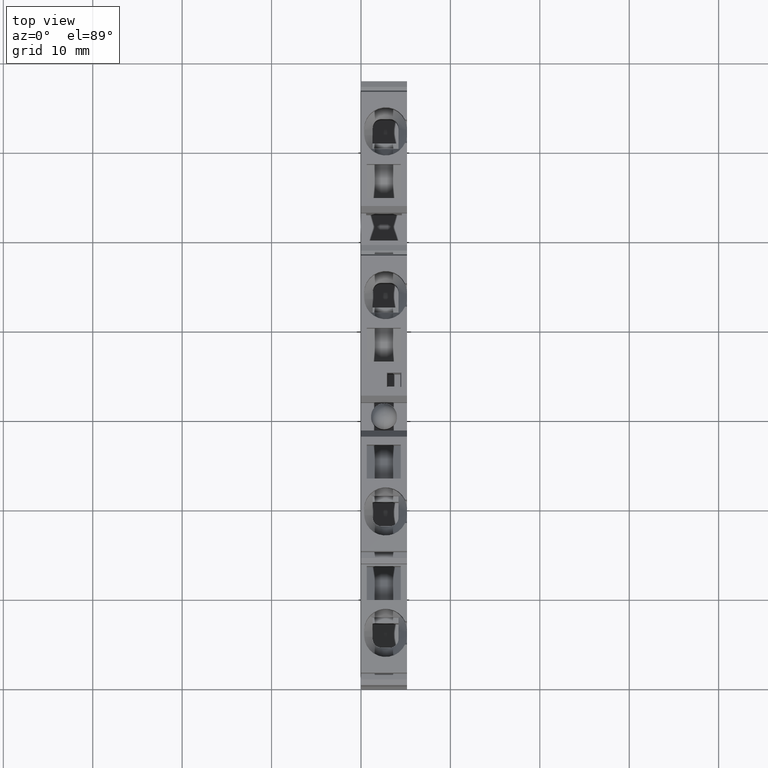
[diagram: clean part render]
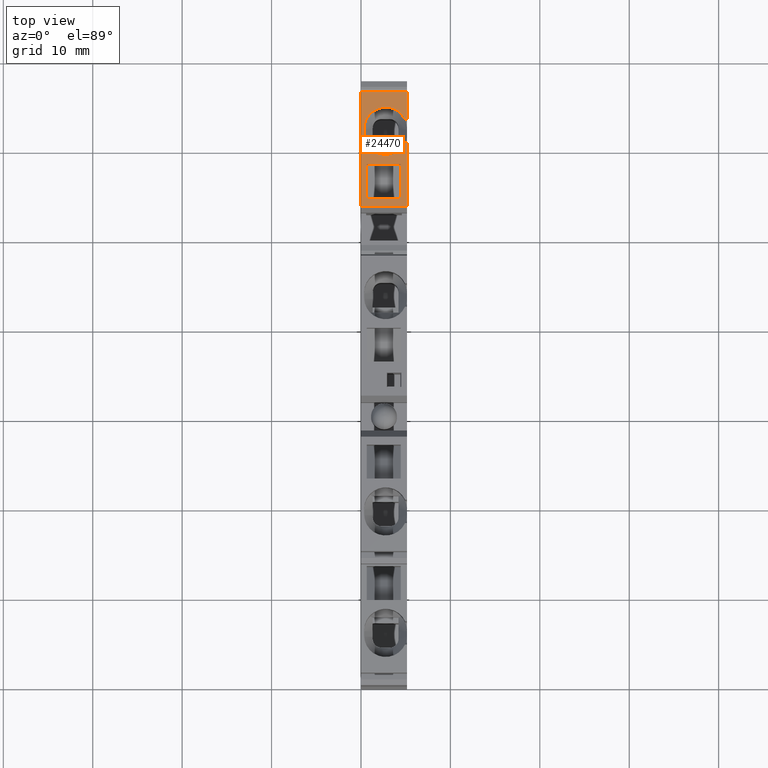
[diagram: same view with one face highlighted and labeled with its STEP entity id]
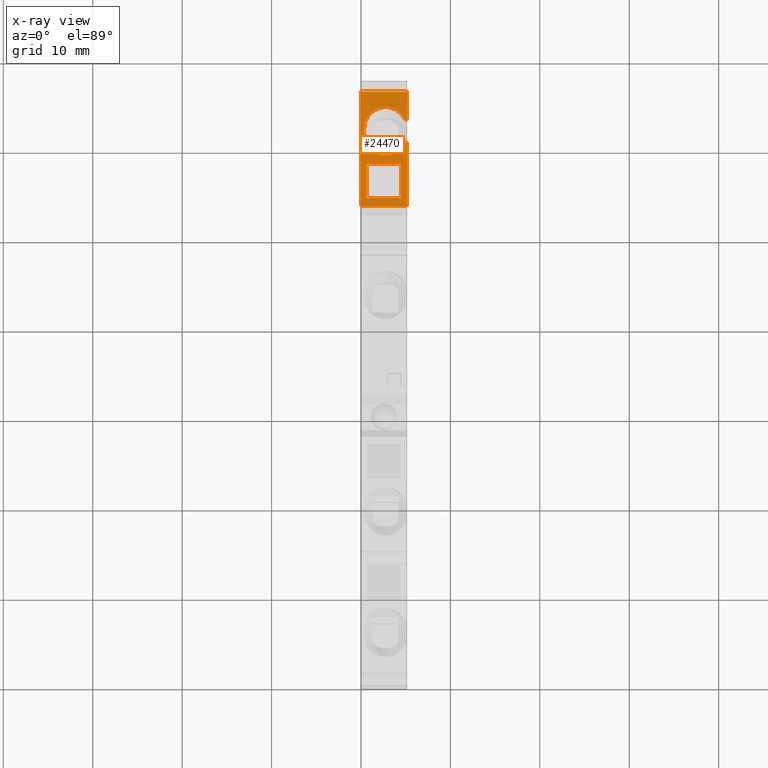
[diagram: x-ray of the same camera — body ghosted, the highlighted face saturated]
A machine part, top view. The second image highlights one B-rep face of the part: STEP entity #24470.
The next image is the same camera in x-ray: the body ghosted, the highlighted face saturated — about 0% of this face is hidden behind the body in this view.
In plain terms, the highlighted planar face has unit normal (0, 0, -1).
Its self-contained STEP definition (entity closure, byte-faithful):
#1580=CARTESIAN_POINT('',(201.572632143486,31.7467138221736,48.52));
#1590=VERTEX_POINT('',#1580);
#1620=CARTESIAN_POINT('',(14.196323,31.7467138221519,48.52));
#1630=DIRECTION('',(1.,1.15435438985401E-13,0.));
#1640=VECTOR('',#1630,1.);
#1650=LINE('',#1620,#1640);
#1660=CARTESIAN_POINT('',(188.787135479711,31.7467138221721,48.52));
#1670=VERTEX_POINT('',#1660);
#1680=EDGE_CURVE('',#1670,#1590,#1650,.T.);
#11260=CARTESIAN_POINT('',(195.843635451697,31.7467138221729,
53.4517424229273));
#11270=VERTEX_POINT('',#11260);
#11300=CARTESIAN_POINT('',(196.843635451697,31.746713822173,51.27));
#11310=DIRECTION('',(1.17239551400417E-13,-1.,0.));
#11320=DIRECTION('',(1.,1.17239551400417E-13,0.));
#11330=AXIS2_PLACEMENT_3D('',#11300,#11310,#11320);
#11340=CIRCLE('',#11330,2.4);
#11350=CARTESIAN_POINT('',(196.843635451697,31.746713822173,48.87));
#11360=VERTEX_POINT('',#11350);
#11370=EDGE_CURVE('',#11270,#11360,#11340,.T.);
#17230=CARTESIAN_POINT('',(195.843635451697,31.746713822173,53.67));
#17240=DIRECTION('',(3.25405123403667E-30,-2.77555756156535E-17,1.));
#17250=VECTOR('',#17240,1.);
#17260=LINE('',#17230,#17250);
#17270=CARTESIAN_POINT('',(195.843635451697,31.746713822173,53.67));
#17280=VERTEX_POINT('',#17270);
#17290=EDGE_CURVE('',#11270,#17280,#17260,.T.);
#23390=CARTESIAN_POINT('',(201.572632143486,31.7467138221736,53.67));
#23400=VERTEX_POINT('',#23390);
#23430=CARTESIAN_POINT('',(201.572632143486,31.7467138221735,53.67));
#23440=DIRECTION('',(0.,0.,1.));
#23450=VECTOR('',#23440,1.);
#23460=LINE('',#23430,#23450);
#23470=EDGE_CURVE('',#1590,#23400,#23460,.T.);
#23610=CARTESIAN_POINT('',(188.787135479711,31.7467138221721,53.67));
#23620=DIRECTION('',(1.15435438985401E-13,-1.,0.));
#23630=DIRECTION('',(-1.,-1.15435438985401E-13,0.));
#23640=AXIS2_PLACEMENT_3D('',#23610,#23620,#23630);
#23650=PLANE('',#23640);
#23660=CARTESIAN_POINT('',(168.644442103639,31.7467138221697,52.97));
#23670=DIRECTION('',(1.,1.15435438985401E-13,0.));
#23680=VECTOR('',#23670,1.);
#23690=LINE('',#23660,#23680);
#23700=CARTESIAN_POINT('',(189.668635451695,31.7467138221722,52.97));
#23710=VERTEX_POINT('',#23700);
#23720=CARTESIAN_POINT('',(193.468635681421,31.7467138221726,52.97));
#23730=VERTEX_POINT('',#23720);
#23740=EDGE_CURVE('',#23710,#23730,#23690,.T.);
#23750=ORIENTED_EDGE('',*,*,#23740,.F.);
#23760=CARTESIAN_POINT('',(193.468635681421,31.7467138221726,53.67));
#23770=DIRECTION('',(0.,0.,-1.));
#23780=VECTOR('',#23770,1.);
#23790=LINE('',#23760,#23780);
#23800=CARTESIAN_POINT('',(193.468635681421,31.7467138221726,49.17));
#23810=VERTEX_POINT('',#23800);
#23820=EDGE_CURVE('',#23730,#23810,#23790,.T.);
#23830=ORIENTED_EDGE('',*,*,#23820,.F.);
#23840=CARTESIAN_POINT('',(168.644442103639,31.7467138221697,49.17));
#23850=DIRECTION('',(-1.,-1.15435438985401E-13,0.));
#23860=VECTOR('',#23850,1.);
#23870=LINE('',#23840,#23860);
#23880=CARTESIAN_POINT('',(189.668635451695,31.7467138221722,49.17));
#23890=VERTEX_POINT('',#23880);
#23900=EDGE_CURVE('',#23810,#23890,#23870,.T.);
#23910=ORIENTED_EDGE('',*,*,#23900,.F.);
#23920=CARTESIAN_POINT('',(189.668635451695,31.7467138221722,53.67));
#23930=DIRECTION('',(0.,0.,1.));
#23940=VECTOR('',#23930,1.);
#23950=LINE('',#23920,#23940);
#23960=EDGE_CURVE('',#23890,#23710,#23950,.T.);
#23970=ORIENTED_EDGE('',*,*,#23960,.F.);
#23980=EDGE_LOOP('',(#23970,#23910,#23830,#23750));
#23990=FACE_BOUND('',#23980,.T.);
#24000=CARTESIAN_POINT('',(14.196323,31.7467138221519,53.67));
#24010=DIRECTION('',(1.,1.15435438985401E-13,0.));
#24020=VECTOR('',#24010,1.);
#24030=LINE('',#24000,#24020);
#24040=CARTESIAN_POINT('',(198.443635451697,31.746713822173,53.67));
#24050=VERTEX_POINT('',#24040);
#24060=EDGE_CURVE('',#24050,#23400,#24030,.T.);
#24070=ORIENTED_EDGE('',*,*,#24060,.T.);
#24080=CARTESIAN_POINT('',(198.443635451697,31.746713822173,53.67));
#24090=DIRECTION('',(-3.25405123403667E-30,2.77555756156535E-17,-1.));
#24100=VECTOR('',#24090,1.);
#24110=LINE('',#24080,#24100);
#24120=CARTESIAN_POINT('',(198.443635451697,31.746713822173,
53.4517424229269));
#24130=VERTEX_POINT('',#24120);
#24140=EDGE_CURVE('',#24050,#24130,#24110,.T.);
#24150=ORIENTED_EDGE('',*,*,#24140,.F.);
#24160=CARTESIAN_POINT('',(197.443635451697,31.746713822173,51.27));
#24170=DIRECTION('',(0.,1.,0.));
#24180=DIRECTION('',(1.,0.,0.));
#24190=AXIS2_PLACEMENT_3D('',#24160,#24170,#24180);
#24200=CIRCLE('',#24190,2.4);
#24210=CARTESIAN_POINT('',(197.443635451697,31.746713822173,48.87));
#24220=VERTEX_POINT('',#24210);
#24230=EDGE_CURVE('',#24130,#24220,#24200,.T.);
#24240=ORIENTED_EDGE('',*,*,#24230,.F.);
#24250=CARTESIAN_POINT('',(168.644442103639,31.7467138221729,48.87));
#24260=DIRECTION('',(-1.,-5.50948175968897E-15,-7.40148683083444E-16));
#24270=VECTOR('',#24260,1.);
#24280=LINE('',#24250,#24270);
#24290=EDGE_CURVE('',#24220,#11360,#24280,.T.);
#24300=ORIENTED_EDGE('',*,*,#24290,.F.);
#24310=ORIENTED_EDGE('',*,*,#11370,.T.);
#24320=ORIENTED_EDGE('',*,*,#17290,.F.);
#24330=CARTESIAN_POINT('',(188.787135479711,31.7467138221721,53.67));
#24340=VERTEX_POINT('',#24330);
#24350=EDGE_CURVE('',#24340,#17280,#24030,.T.);
#24360=ORIENTED_EDGE('',*,*,#24350,.T.);
#24370=CARTESIAN_POINT('',(188.787135479711,31.7467138221721,53.67));
#24380=DIRECTION('',(0.,0.,-1.));
#24390=VECTOR('',#24380,1.);
#24400=LINE('',#24370,#24390);
#24410=EDGE_CURVE('',#24340,#1670,#24400,.T.);
#24420=ORIENTED_EDGE('',*,*,#24410,.F.);
#24430=ORIENTED_EDGE('',*,*,#1680,.F.);
#24440=ORIENTED_EDGE('',*,*,#23470,.F.);
#24450=EDGE_LOOP('',(#24440,#24430,#24420,#24360,#24320,#24310,#24300,
#24240,#24150,#24070));
#24460=FACE_OUTER_BOUND('',#24450,.T.);
#24470=ADVANCED_FACE('',(#23990,#24460),#23650,.F.);